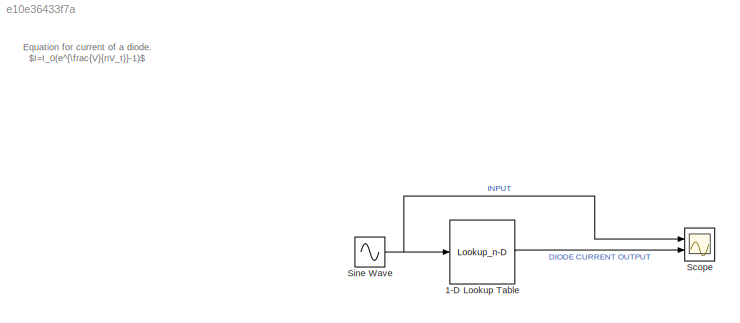
MODEL slx_e10e36433f7a
KIND model
CONFIG AbsTol = auto
CONFIG EnableMultiTasking = off
CONFIG FixedStep = auto
CONFIG MaxStep = auto
CONFIG MinStep = auto
CONFIG RelTol = 1e-3
CONFIG SampleTimeConstraint = Unconstrained
CONFIG SolverName = VariableStepAuto
CONFIG StartTime = 0.0
CONFIG StopTime = 10.0
BLOCK [Lookup_n-D] 1-D Lookup Table
  BreakpointsForDimension1 = [-15	-14.9900000000000	-14.9800000000000	-14.9700000000000	-14.9600000000000	-14.9500000000000	-14.9400000000000	-14.9300000000000	-14.9200000000000	-14.9100000000000	-14.9000000000000	-14.8900000000000	-14.8800000000000	-14.8700000000000	-14.8600000000000	-14.8500000000000	-14.8400000000000	-14.8300000000000	-14.8200000000000	-14.8100000000000	-14.8000000000000	-14.7900000000000	-14.7800000000000...<+29136ch>
  InputPortMap = u0
  InternalRulePriority = Speed
  NumberOfTableDimensions = 1
  Ports = [1, 1]
  RndMeth = Simplest
  Table = [-1.00000000000000e-09	-1.00000000000000e-09	-1.00000000000000e-09	-1.00000000000000e-09	-1.00000000000000e-09	-1.00000000000000e-09	-1.00000000000000e-09	-1.00000000000000e-09	-1.00000000000000e-09	-1.00000000000000e-09	-1.00000000000000e-09	-1.00000000000000e-09	-1.00000000000000e-09	-1.00000000000000e-09	-1.00000000000000e-09	-1.00000000000000e-09	-1.00000000000000e-09	-1.00000000000000e-09	-1....<+29307ch>
BLOCK [Scope] Scope
  Floating = off
  NumInputPorts = 2
  Ports = [2]
  ScopeSpecificationString = Simulink.scopes.TimeScopeBlockCfg('CurrentConfiguration', extmgr.ConfigurationSet(extmgr.Configuration('Core','General UI',true),extmgr.Configuration('Core','Source UI',true),extmgr.Configuration('Sources','WiredSimulink',true),extmgr.Configuration('Visuals','Time Domain',true,'SerializedDisplays',{struct('MinYLimReal','-1.24563','MaxYLimReal','1.24904','YLabelReal','','MinYLimMag','0.00000','MaxY...<+1996ch>
BLOCK [Sin] Sine Wave
  Ports = [0, 1]
  SampleTime = 0
ANNOTATION (root): Equation for current of a diode. $I=I_0(e^{\frac{V}{nV_t}}-1)$
LINE 1-D Lookup Table:1 -> Scope:2
NET Sine Wave:1 -> 1-D Lookup Table:1, Scope:1
note: NET lines group one-source signal fan-out (src -> all destinations, sorted); 1:1 wires keep LINE
